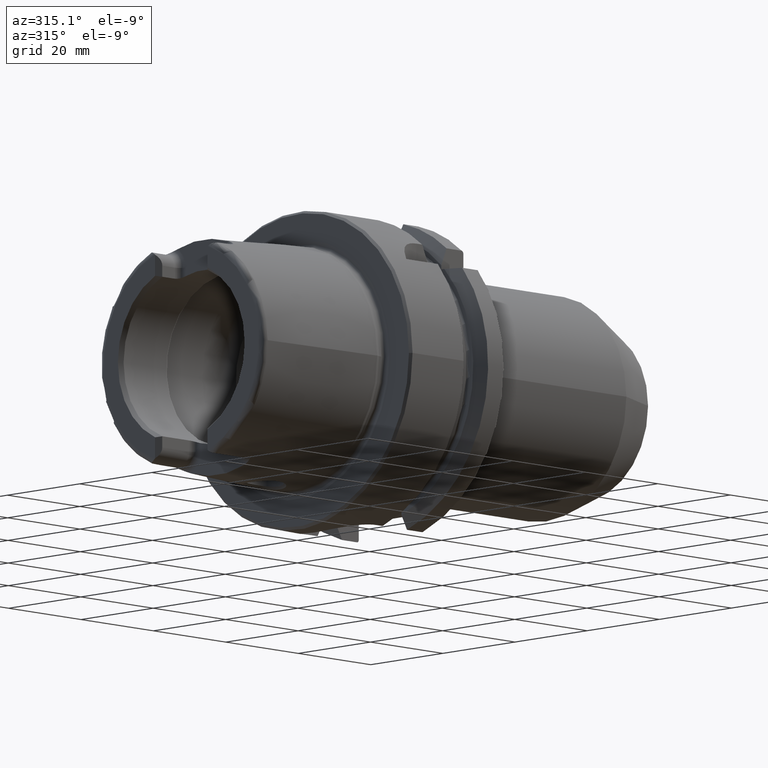
[diagram: clean part render]
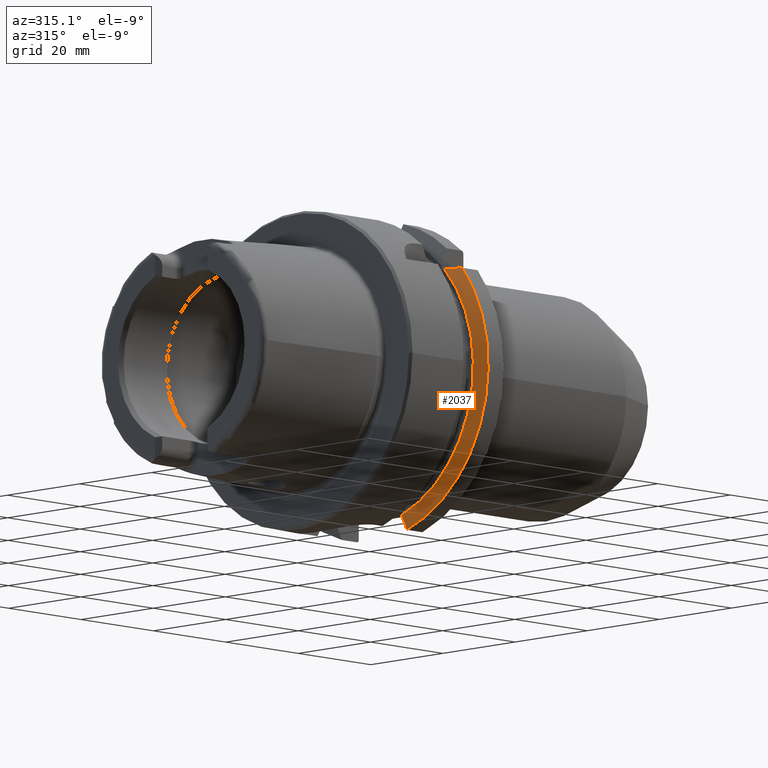
[diagram: same view with one face highlighted and labeled with its STEP entity id]
A machine part, auxiliary view. The second image highlights one B-rep face of the part: STEP entity #2037.
In plain terms, the highlighted conical surface has half-angle 60 deg.
Its self-contained STEP definition (entity closure, byte-faithful):
#38=(
BOUNDED_CURVE()
B_SPLINE_CURVE(2,(#3852,#3853,#3854),.UNSPECIFIED.,.F.,.F.)
B_SPLINE_CURVE_WITH_KNOTS((3,3),(0.,0.378858277140999),.UNSPECIFIED.)
CURVE()
GEOMETRIC_REPRESENTATION_ITEM()
RATIONAL_B_SPLINE_CURVE((1.,1.00166199353854,1.))
REPRESENTATION_ITEM('')
);
#44=(
BOUNDED_CURVE()
B_SPLINE_CURVE(2,(#4002,#4003,#4004),.UNSPECIFIED.,.F.,.F.)
B_SPLINE_CURVE_WITH_KNOTS((3,3),(0.,0.311314369989023),.UNSPECIFIED.)
CURVE()
GEOMETRIC_REPRESENTATION_ITEM()
RATIONAL_B_SPLINE_CURVE((1.,1.00102053193598,1.))
REPRESENTATION_ITEM('')
);
#284=FACE_OUTER_BOUND('',#412,.T.);
#412=EDGE_LOOP('',(#1687,#1688,#1689,#1690));
#736=CIRCLE('',#2211,28.8975952641916);
#753=CIRCLE('',#2248,31.5);
#898=VERTEX_POINT('',#3848);
#900=VERTEX_POINT('',#3851);
#925=VERTEX_POINT('',#3953);
#933=VERTEX_POINT('',#4000);
#1136=EDGE_CURVE('',#900,#898,#38,.T.);
#1168=EDGE_CURVE('',#898,#925,#736,.T.);
#1180=EDGE_CURVE('',#925,#933,#44,.T.);
#1234=EDGE_CURVE('',#900,#933,#753,.T.);
#1687=ORIENTED_EDGE('',*,*,#1136,.T.);
#1688=ORIENTED_EDGE('',*,*,#1168,.T.);
#1689=ORIENTED_EDGE('',*,*,#1180,.T.);
#1690=ORIENTED_EDGE('',*,*,#1234,.F.);
#1962=CONICAL_SURFACE('',#2255,30.1987976320958,1.0471975511966);
#2037=ADVANCED_FACE('',(#284),#1962,.T.);
#2211=AXIS2_PLACEMENT_3D('',#3955,#2614,#2615);
#2248=AXIS2_PLACEMENT_3D('',#4225,#2714,#2715);
#2255=AXIS2_PLACEMENT_3D('',#4240,#2730,#2731);
#2614=DIRECTION('center_axis',(1.,0.,0.));
#2615=DIRECTION('ref_axis',(0.,0.,-1.));
#2714=DIRECTION('center_axis',(1.,0.,0.));
#2715=DIRECTION('ref_axis',(0.,0.,-1.));
#2730=DIRECTION('center_axis',(1.,0.,0.));
#2731=DIRECTION('ref_axis',(0.,-0.966819045705046,-0.255462194584608));
#3848=CARTESIAN_POINT('',(19.875,-20.8583559288126,20.));
#3851=CARTESIAN_POINT('',(21.3774990747593,-24.3361870472759,20.));
#3852=CARTESIAN_POINT('Ctrl Pts',(21.3774990747593,-24.3361870472759,20.));
#3853=CARTESIAN_POINT('Ctrl Pts',(20.5684390397668,-22.5223452916166,20.));
#3854=CARTESIAN_POINT('Ctrl Pts',(19.875,-20.8583559288126,20.));
#3953=CARTESIAN_POINT('',(19.875,-9.,-27.4603534582684));
#3955=CARTESIAN_POINT('Origin',(19.875,0.,0.));
#4000=CARTESIAN_POINT('',(21.3774990747593,-9.,-30.1869176962472));
#4002=CARTESIAN_POINT('Ctrl Pts',(19.875,-9.,-27.4603534582684));
#4003=CARTESIAN_POINT('Ctrl Pts',(20.5907174110267,-9.,-28.7648946319029));
#4004=CARTESIAN_POINT('Ctrl Pts',(21.3774990747593,-9.,-30.1869176962472));
#4225=CARTESIAN_POINT('Origin',(21.3774990747593,0.,0.));
#4240=CARTESIAN_POINT('Origin',(20.6262495373797,0.,0.));